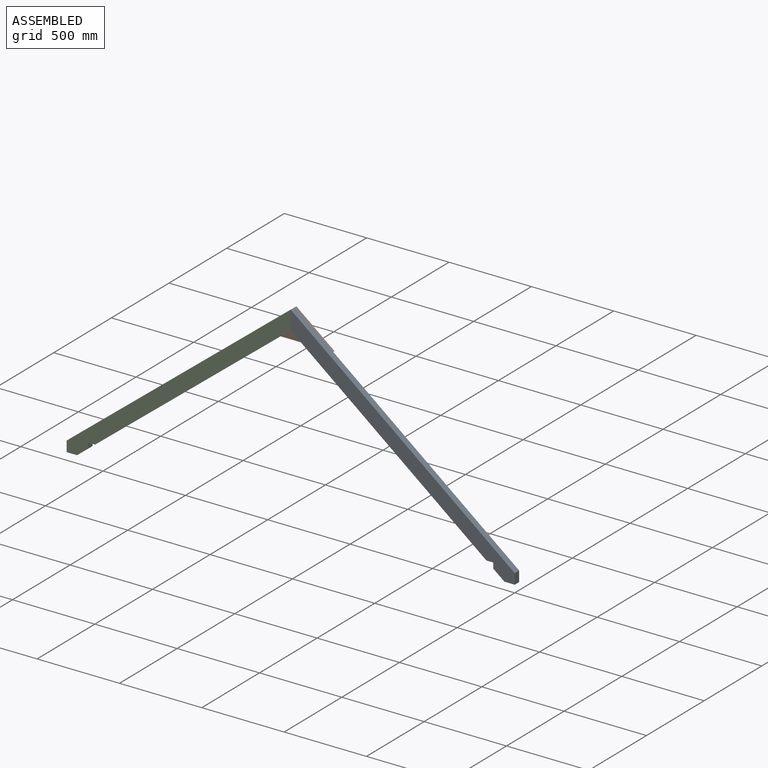
[diagram: assembled view]
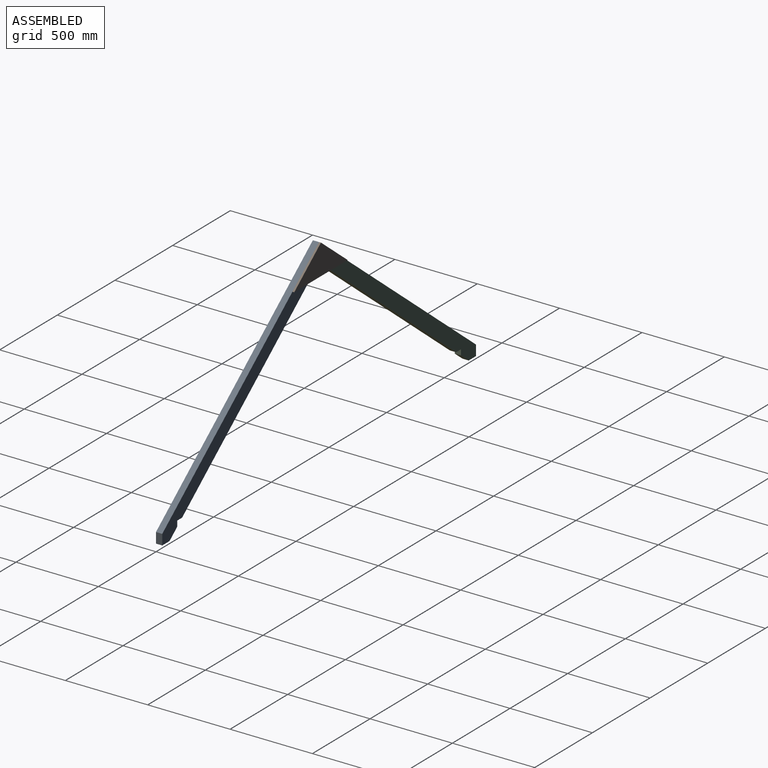
[diagram: assembled view, second angle]
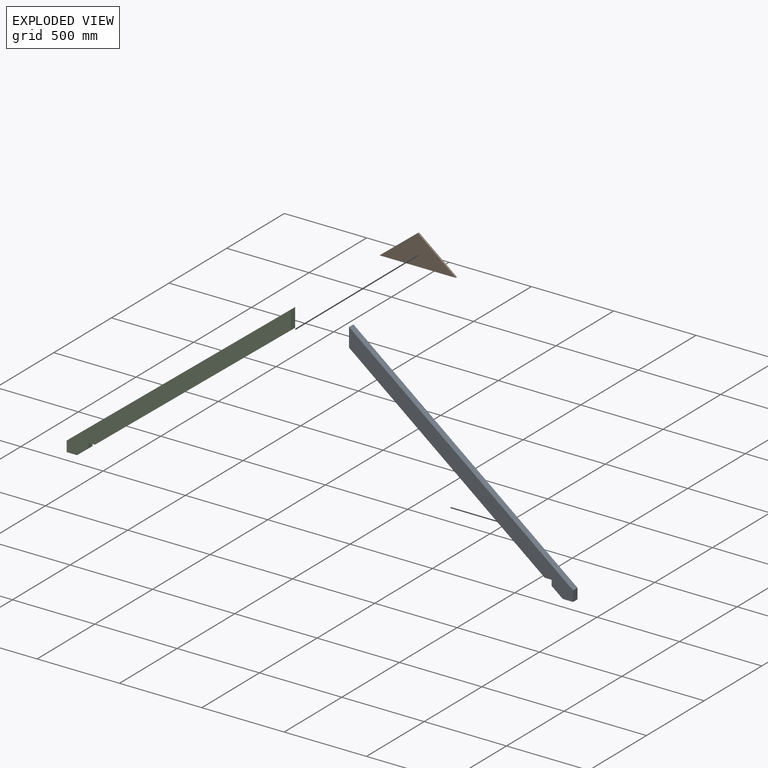
[diagram: exploded view]
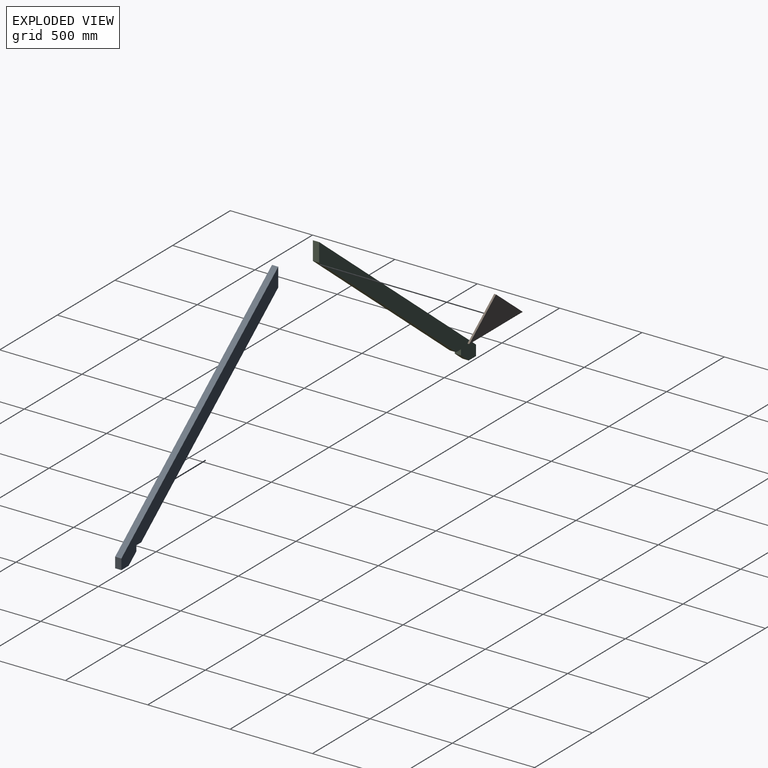
[diagram: exploded view, second angle]
ASSEMBLY  parts=3 mates=2
PART A: 10 faces, bbox 1360.5x1145.5x38.1 mm
  f0: plane 63.5x38.1mm, normal (-1,0,0), area 2419.3mm2, adj f1,f7,f8,f9
  f1: plane 62.98x38.1mm, normal (0,-1,0), area 2399.5mm2, adj f0,f2,f8,f9
  f2: plane 67.2x53.44mm, normal (0.62,-0.78,0), area 3271.2mm2, adj f1,f3,f8,f9
  f3: plane 38.1x33.46mm, normal (1,0,0), area 1274.9mm2, adj f2,f4,f8,f9
  f4: plane 42.07x38.1mm, normal (0,-1,0), area 1603mm2, adj f3,f5,f8,f9
  f5: plane 1188.24x945.04mm, normal (0.62,-0.78,0), area 57844.5mm2, adj f4,f6,f8,f9
  f6: plane 113.59x38.1mm, normal (1,0,0), area 4327.7mm2, adj f5,f7,f8,f9
  f7: plane 1360.49x1082.04mm, normal (-0.62,0.78,0), area 66229.7mm2, adj f0,f6,f8,f9
  f8: plane 1360.49x1145.54mm, normal (0,0,-1), area 152254.9mm2, adj f0,f1,f2,f3,f4,f5,f6,f7
  f9: plane 1360.49x1145.54mm, normal (0,0,1), area 152254.9mm2, adj f0,f1,f2,f3,f4,f5,f6,f7
PART B: 5 faces, bbox 463.6x184.2x11.1 mm
  f0: plane 231.78x184.15mm, normal (-0.62,0.78,0), area 3289.6mm2, adj f1,f2,f3,f4
  f1: plane 463.55x11.11mm, normal (0,-1,0), area 5151.2mm2, adj f0,f2,f3,f4
  f2: plane 231.78x184.15mm, normal (0.62,0.78,0), area 3289.6mm2, adj f0,f1,f3,f4
  f3: plane 463.55x184.15mm, normal (0,0,-1), area 42681.4mm2, adj f0,f1,f2
  f4: plane 463.55x184.15mm, normal (0,0,1), area 42681.4mm2, adj f0,f1,f2
PART C: same geometry as A
PLACE A rot(axis=(0,0.71,0.71),180deg) t=(4329.84,0,38.1)mm
PLACE B rot(axis=(1,0,0),90deg) t=(1779.92,38.1,-2395.32)mm
PLACE C rot(axis=(1,0,0),90deg) t=(-1050.85,38.1,38.1)mm
MATE fastened B.f4 <-> C.f8  axis (0,1,0) through (1639.49,38.1,1183.64)mm
MATE fastened A.f6 <-> C.f6  axis (1,0,0) through (1639.49,19.05,1126.84)mm
